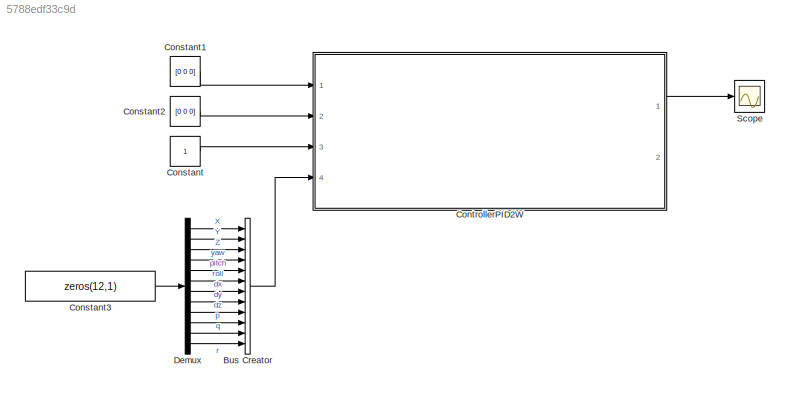
MODEL slx_5788edf33c9d
KIND model
CONFIG AbsTol = auto
CONFIG FixedStep = auto
CONFIG MaxStep = auto
CONFIG MinStep = auto
CONFIG RelTol = 1e-3
CONFIG SampleTimeConstraint = Unconstrained
CONFIG Solver = ode45
CONFIG SolverMode = Auto
CONFIG SolverName = ode45
CONFIG StartTime = 0.0
CONFIG StopTime = 10.0
BLOCK [BusCreator] Bus Creator
  DisplayOption = bar
  Inputs = 12
  Ports = [12, 1]
BLOCK [Constant] Constant
BLOCK [Constant] Constant1
  Value = [0 0 0]
BLOCK [Constant] Constant2
  Value = [0 0 0]
BLOCK [Constant] Constant3
  Value = zeros(12,1)
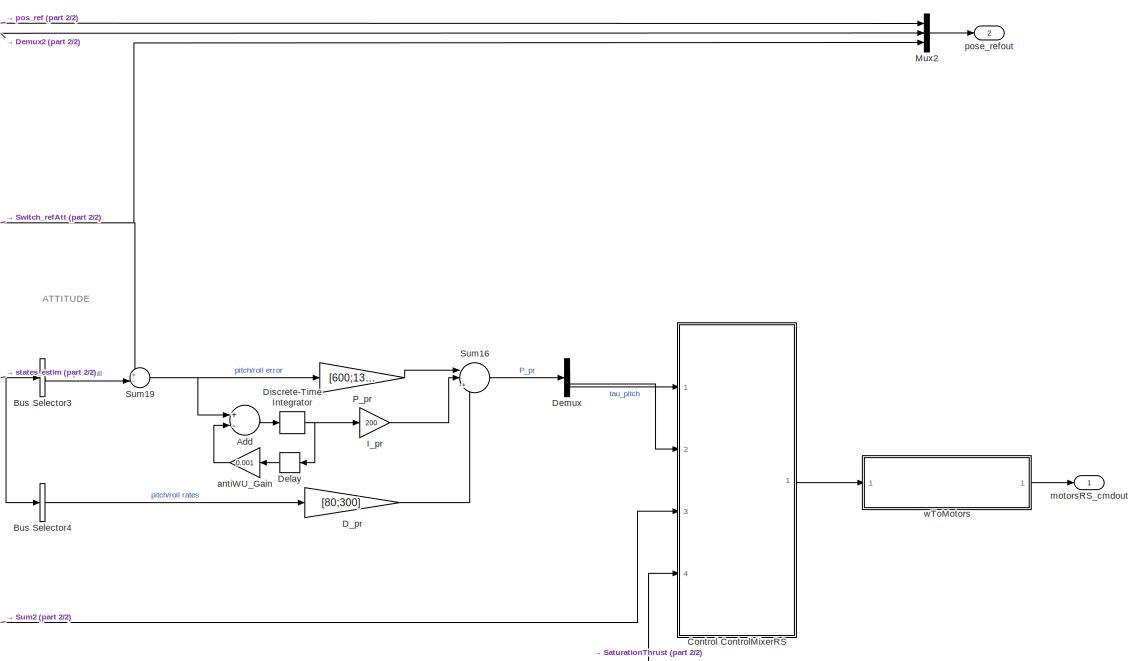
[diagram: ControllerPID2W - part 1/2, top right region]
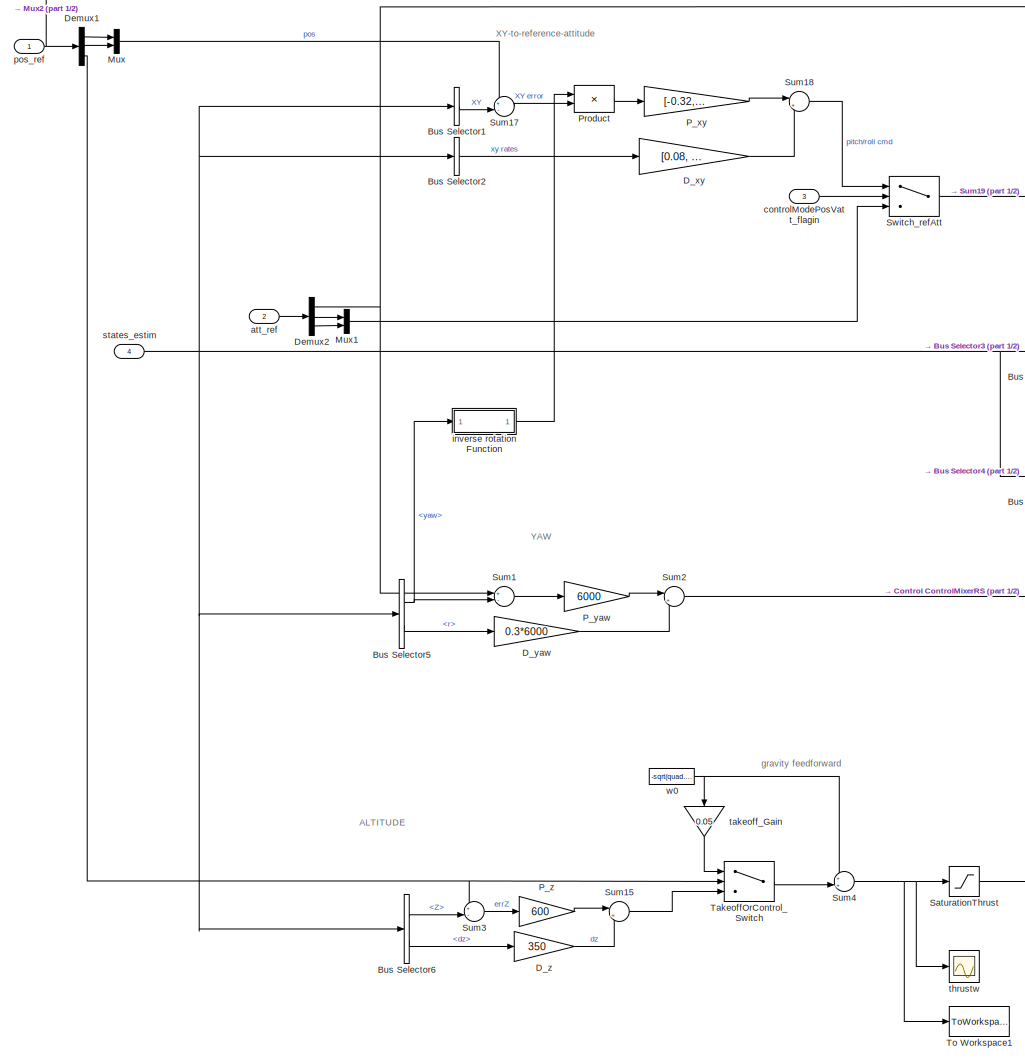
[diagram: ControllerPID2W - part 2/2, left side, full height]
BLOCK [SubSystem] ControllerPID2W
  Ports = [4, 2]
  RTWSystemCode = Reusable function
  RequestExecContextInheritance = off
  TreatAsAtomicUnit = on
BLOCK [Sum] ControllerPID2W/Add
  InputSameDT = off
  Inputs = +-
  OutDataTypeStr = Inherit: Inherit via internal rule
  Ports = [2, 1]
  SaturateOnIntegerOverflow = off
BLOCK [BusSelector] ControllerPID2W/Bus Selector1
  OutputAsBus = on
  OutputSignals = X,Y
  Ports = [1, 1]
BLOCK [BusSelector] ControllerPID2W/Bus Selector2
  OutputAsBus = on
  OutputSignals = dx,dy
  Ports = [1, 1]
BLOCK [BusSelector] ControllerPID2W/Bus Selector3
  OutputAsBus = on
  OutputSignals = pitch,roll
  Ports = [1, 1]
BLOCK [BusSelector] ControllerPID2W/Bus Selector4
  OutputAsBus = on
  OutputSignals = q,p
  Ports = [1, 1]
BLOCK [BusSelector] ControllerPID2W/Bus Selector5
  OutputSignals = yaw,r
  Ports = [1, 2]
BLOCK [BusSelector] ControllerPID2W/Bus Selector6
  OutputSignals = Z,dz
  Ports = [1, 2]
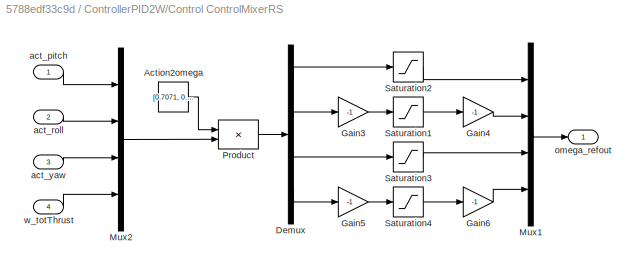
BLOCK [SubSystem] ControllerPID2W/Control ControlMixerRS
  Ports = [4, 1]
  RequestExecContextInheritance = off
BLOCK [Constant] ControllerPID2W/Control ControlMixerRS/Action2omega
  Value = [0.7071, 0.7071, -1.0000, -1.00;   -0.7071,    0.7071,   -1.0000,    1.00;   -0.7071,   -0.7071,   -1.0000,   -1.00;    0.7071,   -0.7071,   -1.0000,    1.00]
BLOCK [Demux] ControllerPID2W/Control ControlMixerRS/Demux
  DisplayOption = bar
  Ports = [1, 4]
BLOCK [Gain] ControllerPID2W/Control ControlMixerRS/Gain3
  Gain = -1
  OutDataTypeStr = Inherit: Inherit via internal rule
  ParamDataTypeStr = Inherit: Inherit via internal rule
  SaturateOnIntegerOverflow = off
BLOCK [Gain] ControllerPID2W/Control ControlMixerRS/Gain4
  Gain = -1
  OutDataTypeStr = Inherit: Inherit via internal rule
  ParamDataTypeStr = Inherit: Inherit via internal rule
  SaturateOnIntegerOverflow = off
BLOCK [Gain] ControllerPID2W/Control ControlMixerRS/Gain5
  Gain = -1
  OutDataTypeStr = Inherit: Inherit via internal rule
  ParamDataTypeStr = Inherit: Inherit via internal rule
  SaturateOnIntegerOverflow = off
BLOCK [Gain] ControllerPID2W/Control ControlMixerRS/Gain6
  Gain = -1
  OutDataTypeStr = Inherit: Inherit via internal rule
  ParamDataTypeStr = Inherit: Inherit via internal rule
  SaturateOnIntegerOverflow = off
BLOCK [Mux] ControllerPID2W/Control ControlMixerRS/Mux1
  DisplayOption = bar
  Ports = [4, 1]
BLOCK [Mux] ControllerPID2W/Control ControlMixerRS/Mux2
  DisplayOption = bar
  Ports = [4, 1]
BLOCK [Product] ControllerPID2W/Control ControlMixerRS/Product
  InputSameDT = off
  Multiplication = Matrix(*)
  OutDataTypeStr = Inherit: Inherit via internal rule
  Ports = [2, 1]
  SaturateOnIntegerOverflow = off
BLOCK [Saturate] ControllerPID2W/Control ControlMixerRS/Saturation1
  InputPortMap = u0
  LowerLimit = 500
  Ports = [1, 1]
  UpperLimit = 2618
BLOCK [Saturate] ControllerPID2W/Control ControlMixerRS/Saturation2
  InputPortMap = u0
  LowerLimit = 500
  Ports = [1, 1]
  UpperLimit = 2618
BLOCK [Saturate] ControllerPID2W/Control ControlMixerRS/Saturation3
  InputPortMap = u0
  LowerLimit = 500
  Ports = [1, 1]
  UpperLimit = 2618
BLOCK [Saturate] ControllerPID2W/Control ControlMixerRS/Saturation4
  InputPortMap = u0
  LowerLimit = 500
  Ports = [1, 1]
  UpperLimit = 2618
BLOCK [Inport] ControllerPID2W/Control ControlMixerRS/act_pitch
  IconDisplay = Port number
BLOCK [Inport] ControllerPID2W/Control ControlMixerRS/act_roll
  IconDisplay = Port number
  Port = 2
BLOCK [Inport] ControllerPID2W/Control ControlMixerRS/act_yaw
  IconDisplay = Port number
  Port = 3
BLOCK [Outport] ControllerPID2W/Control ControlMixerRS/omega_refout
  IconDisplay = Port number
BLOCK [Inport] ControllerPID2W/Control ControlMixerRS/w_totThrust
  IconDisplay = Port number
  Port = 4
BLOCK [Gain] ControllerPID2W/D_pr
  Gain = [80;300]
  OutDataTypeStr = Inherit: Inherit via internal rule
  ParamDataTypeStr = Inherit: Inherit via internal rule
  SaturateOnIntegerOverflow = off
BLOCK [Gain] ControllerPID2W/D_xy
  Gain = [0.08, -0.09]
  OutDataTypeStr = Inherit: Inherit via internal rule
  ParamDataTypeStr = Inherit: Inherit via internal rule
  SaturateOnIntegerOverflow = off
BLOCK [Gain] ControllerPID2W/D_yaw
  Gain = 0.3*6000
  OutDataTypeStr = Inherit: Inherit via internal rule
  ParamDataTypeStr = Inherit: Inherit via internal rule
  SaturateOnIntegerOverflow = off
BLOCK [Gain] ControllerPID2W/D_z
  Gain = 350
  OutDataTypeStr = Inherit: Inherit via internal rule
  ParamDataTypeStr = Inherit: Inherit via internal rule
  SaturateOnIntegerOverflow = off
BLOCK [Delay] ControllerPID2W/Delay
  DelayLength = 1
  InitialCondition = 0
  InputPortMap = u0
  Ports = [1, 1]
BLOCK [Demux] ControllerPID2W/Demux
  DisplayOption = bar
  Outputs = 2
  Ports = [1, 2]
BLOCK [Demux] ControllerPID2W/Demux1
  DisplayOption = bar
  Outputs = 3
  Ports = [1, 3]
BLOCK [Demux] ControllerPID2W/Demux2
  DisplayOption = bar
  Outputs = 3
  Ports = [1, 3]
BLOCK [DiscreteIntegrator] ControllerPID2W/Discrete-Time Integrator
  InitialConditionSetting = State (most efficient)
  LimitOutput = on
  LowerSaturationLimit = -2
  Ports = [1, 1]
  SampleTime = sampleTime_qcsim
  UpperSaturationLimit = 2
BLOCK [Gain] ControllerPID2W/I_pr
  Gain = 200
  OutDataTypeStr = Inherit: Inherit via internal rule
  ParamDataTypeStr = Inherit: Inherit via internal rule
  SaturateOnIntegerOverflow = off
BLOCK [Mux] ControllerPID2W/Mux
  DisplayOption = bar
  Inputs = 2
  Ports = [2, 1]
BLOCK [Mux] ControllerPID2W/Mux1
  DisplayOption = bar
  Inputs = 2
  Ports = [2, 1]
BLOCK [Mux] ControllerPID2W/Mux2
  DisplayOption = bar
  Inputs = 3
  Ports = [3, 1]
BLOCK [Gain] ControllerPID2W/P_pr
  Gain = [600;1300]
  OutDataTypeStr = Inherit: Inherit via internal rule
  ParamDataTypeStr = Inherit: Inherit via internal rule
  SaturateOnIntegerOverflow = off
BLOCK [Gain] ControllerPID2W/P_xy
  Gain = [-0.32,0.29]
  OutDataTypeStr = Inherit: Inherit via internal rule
  ParamDataTypeStr = Inherit: Inherit via internal rule
  SaturateOnIntegerOverflow = off
BLOCK [Gain] ControllerPID2W/P_yaw
  Gain = 6000
  OutDataTypeStr = Inherit: Inherit via internal rule
  ParamDataTypeStr = Inherit: Inherit via internal rule
  SaturateOnIntegerOverflow = off
BLOCK [Gain] ControllerPID2W/P_z
  Gain = 600
  OutDataTypeStr = Inherit: Inherit via internal rule
  ParamDataTypeStr = Inherit: Inherit via internal rule
  SaturateOnIntegerOverflow = off
BLOCK [Product] ControllerPID2W/Product
  InputSameDT = off
  Multiplication = Matrix(*)
  OutDataTypeStr = Inherit: Inherit via internal rule
  Ports = [2, 1]
  SaturateOnIntegerOverflow = off
BLOCK [Saturate] ControllerPID2W/SaturationThrust
  InputPortMap = u0
  LowerLimit = -0.92*2618
  Ports = [1, 1]
  UpperLimit = 0.92*2618
BLOCK [Sum] ControllerPID2W/Sum1
  IconShape = round
  InputSameDT = off
  Inputs = +-|
  OutDataTypeStr = Inherit: Inherit via internal rule
  Ports = [2, 1]
  SaturateOnIntegerOverflow = off
BLOCK [Sum] ControllerPID2W/Sum15
  IconShape = round
  InputSameDT = off
  Inputs = |+-
  OutDataTypeStr = Inherit: Inherit via internal rule
  Ports = [2, 1]
  SaturateOnIntegerOverflow = off
BLOCK [Sum] ControllerPID2W/Sum16
  IconShape = round
  InputSameDT = off
  Inputs = ||++-
  OutDataTypeStr = Inherit: Inherit via internal rule
  Ports = [3, 1]
  SaturateOnIntegerOverflow = off
BLOCK [Sum] ControllerPID2W/Sum17
  IconShape = round
  InputSameDT = off
  Inputs = +-|
  OutDataTypeStr = Inherit: Inherit via internal rule
  Ports = [2, 1]
  SaturateOnIntegerOverflow = off
BLOCK [Sum] ControllerPID2W/Sum18
  IconShape = round
  InputSameDT = off
  Inputs = |++
  OutDataTypeStr = Inherit: Inherit via internal rule
  Ports = [2, 1]
  SaturateOnIntegerOverflow = off
BLOCK [Sum] ControllerPID2W/Sum19
  IconShape = round
  InputSameDT = off
  Inputs = +-|
  OutDataTypeStr = Inherit: Inherit via internal rule
  Ports = [2, 1]
  SaturateOnIntegerOverflow = off
BLOCK [Sum] ControllerPID2W/Sum2
  IconShape = round
  InputSameDT = off
  Inputs = |+-
  OutDataTypeStr = Inherit: Inherit via internal rule
  Ports = [2, 1]
  SaturateOnIntegerOverflow = off
BLOCK [Sum] ControllerPID2W/Sum3
  IconShape = round
  InputSameDT = off
  Inputs = +-|
  OutDataTypeStr = Inherit: Inherit via internal rule
  Ports = [2, 1]
  SaturateOnIntegerOverflow = off
BLOCK [Sum] ControllerPID2W/Sum4
  IconShape = round
  InputSameDT = off
  Inputs = ++|
  OutDataTypeStr = Inherit: Inherit via internal rule
  Ports = [2, 1]
  SaturateOnIntegerOverflow = off
BLOCK [Switch] ControllerPID2W/Switch_refAtt
  Criteria = u2 > Threshold
  InputSameDT = off
  SaturateOnIntegerOverflow = off
BLOCK [Switch] ControllerPID2W/TakeoffOrControl_Switch
  Criteria = u2 > Threshold
  InputSameDT = off
  SaturateOnIntegerOverflow = off
BLOCK [ToWorkspace] ControllerPID2W/To Workspace1
  MaxDataPoints = inf
  Ports = [1]
  SampleTime = -1
  VariableName = Tw
BLOCK [Gain] ControllerPID2W/antiWU_Gain
  Gain = 0.001
  OutDataTypeStr = Inherit: Inherit via internal rule
  ParamDataTypeStr = Inherit: Inherit via internal rule
  SaturateOnIntegerOverflow = off
BLOCK [Inport] ControllerPID2W/att_ref
  IconDisplay = Port number
  Port = 2
BLOCK [Inport] ControllerPID2W/controlModePosVatt_flagin
  IconDisplay = Port number
  Port = 3
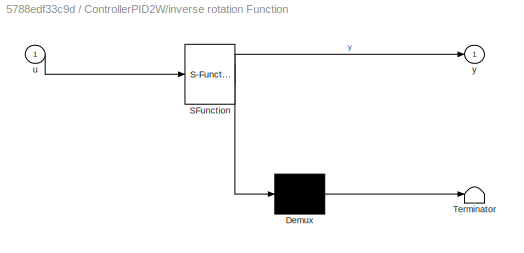
BLOCK [SubSystem] ControllerPID2W/inverse rotation Function
  ErrorFcn = Stateflow.Translate.translate
  PermitHierarchicalResolution = ExplicitOnly
  Ports = [1, 1]
  RequestExecContextInheritance = off
  SFBlockType = MATLAB Function
  TreatAsAtomicUnit = on
BLOCK [Demux] ControllerPID2W/inverse rotation Function/ Demux 
  Outputs = 1
  Ports = [1, 1]
BLOCK [S-Function] ControllerPID2W/inverse rotation Function/ SFunction 
  EnableBusSupport = on
  FunctionName = sf_sfun
  PortCounts = [1 2]
  Ports = [1, 2]
  Tag = Stateflow S-Function linearizeController 2
BLOCK [Terminator] ControllerPID2W/inverse rotation Function/ Terminator 
BLOCK [Inport] ControllerPID2W/inverse rotation Function/u
  IconDisplay = Port number
BLOCK [Outport] ControllerPID2W/inverse rotation Function/y
  IconDisplay = Port number
BLOCK [Outport] ControllerPID2W/motorsRS_cmdout
  IconDisplay = Port number
BLOCK [Inport] ControllerPID2W/pos_ref
  IconDisplay = Port number
BLOCK [Outport] ControllerPID2W/pose_refout
  IconDisplay = Port number
  Port = 2
BLOCK [Inport] ControllerPID2W/states_estim
  IconDisplay = Port number
  Port = 4
BLOCK [Gain] ControllerPID2W/takeoff_Gain
  Gain = 0.05
  OutDataTypeStr = Inherit: Inherit via internal rule
  ParamDataTypeStr = Inherit: Inherit via internal rule
  SaturateOnIntegerOverflow = off
BLOCK [Scope] ControllerPID2W/thrustw
  DataFormat = StructureWithTime
  Floating = off
  NumInputPorts = 1
  Ports = [1]
  SampleTime = 0
  SaveName = ScopeData15
  YMax = 0.045
  YMin = -0.04
BLOCK [Constant] ControllerPID2W/w0
  SampleTime = sampleTime_qcsim
  Value = -sqrt(quad.M*quad.g/4/quad.b)
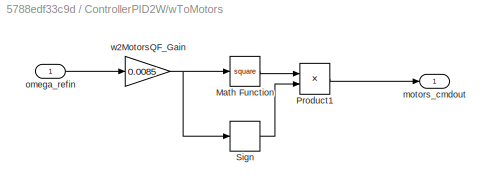
BLOCK [SubSystem] ControllerPID2W/wToMotors
  Ports = [1, 1]
  RequestExecContextInheritance = off
BLOCK [Math] ControllerPID2W/wToMotors/Math Function
  Operator = square
  Ports = [1, 1]
BLOCK [Product] ControllerPID2W/wToMotors/Product1
  InputSameDT = off
  OutDataTypeStr = Inherit: Inherit via internal rule
  Ports = [2, 1]
  RndMeth = Floor
  SaturateOnIntegerOverflow = off
BLOCK [Signum] ControllerPID2W/wToMotors/Sign
BLOCK [Outport] ControllerPID2W/wToMotors/motors_cmdout
  IconDisplay = Port number
BLOCK [Inport] ControllerPID2W/wToMotors/omega_refin
  IconDisplay = Port number
BLOCK [Gain] ControllerPID2W/wToMotors/w2MotorsQF_Gain
  Gain = 0.0085
  OutDataTypeStr = Inherit: Inherit via internal rule
  ParamDataTypeStr = Inherit: Inherit via internal rule
  SaturateOnIntegerOverflow = off
BLOCK [Demux] Demux
  DisplayOption = bar
  Outputs = 12
  Ports = [1, 12]
BLOCK [Scope] Scope
  Floating = off
  NumInputPorts = 1
  Ports = [1]
  SaveName = ScopeData2
ANNOTATION ControllerPID2W: ALTITUDE
ANNOTATION ControllerPID2W: ATTITUDE
ANNOTATION ControllerPID2W: XY-to-reference-attitude
ANNOTATION ControllerPID2W: YAW
ANNOTATION ControllerPID2W: gravity feedforward
LINE Bus Creator:1 -> ControllerPID2W:4
LINE Constant1:1 -> ControllerPID2W:1
LINE Constant2:1 -> ControllerPID2W:2
LINE Constant3:1 -> Demux:1
LINE Constant:1 -> ControllerPID2W:3
LINE ControllerPID2W/Add:1 -> ControllerPID2W/Discrete-Time Integrator:1
LINE ControllerPID2W/Bus Selector1:1 -> ControllerPID2W/Sum17:2
LINE ControllerPID2W/Bus Selector2:1 -> ControllerPID2W/D_xy:1
LINE ControllerPID2W/Bus Selector3:1 -> ControllerPID2W/Sum19:2
LINE ControllerPID2W/Bus Selector4:1 -> ControllerPID2W/D_pr:1
NET ControllerPID2W/Bus Selector5:1 -> ControllerPID2W/Sum1:2, ControllerPID2W/inverse rotation Function:1
LINE ControllerPID2W/Bus Selector5:2 -> ControllerPID2W/D_yaw:1
LINE ControllerPID2W/Bus Selector6:1 -> ControllerPID2W/Sum3:2
LINE ControllerPID2W/Bus Selector6:2 -> ControllerPID2W/D_z:1
LINE ControllerPID2W/Control ControlMixerRS/Action2omega:1 -> ControllerPID2W/Control ControlMixerRS/Product:1
LINE ControllerPID2W/Control ControlMixerRS/Demux:1 -> ControllerPID2W/Control ControlMixerRS/Saturation2:1
LINE ControllerPID2W/Control ControlMixerRS/Demux:2 -> ControllerPID2W/Control ControlMixerRS/Gain3:1
LINE ControllerPID2W/Control ControlMixerRS/Demux:3 -> ControllerPID2W/Control ControlMixerRS/Saturation3:1
LINE ControllerPID2W/Control ControlMixerRS/Demux:4 -> ControllerPID2W/Control ControlMixerRS/Gain5:1
LINE ControllerPID2W/Control ControlMixerRS/Gain3:1 -> ControllerPID2W/Control ControlMixerRS/Saturation1:1
LINE ControllerPID2W/Control ControlMixerRS/Gain4:1 -> ControllerPID2W/Control ControlMixerRS/Mux1:2
LINE ControllerPID2W/Control ControlMixerRS/Gain5:1 -> ControllerPID2W/Control ControlMixerRS/Saturation4:1
LINE ControllerPID2W/Control ControlMixerRS/Gain6:1 -> ControllerPID2W/Control ControlMixerRS/Mux1:4
LINE ControllerPID2W/Control ControlMixerRS/Mux1:1 -> ControllerPID2W/Control ControlMixerRS/omega_refout:1
LINE ControllerPID2W/Control ControlMixerRS/Mux2:1 -> ControllerPID2W/Control ControlMixerRS/Product:2
LINE ControllerPID2W/Control ControlMixerRS/Product:1 -> ControllerPID2W/Control ControlMixerRS/Demux:1
LINE ControllerPID2W/Control ControlMixerRS/Saturation1:1 -> ControllerPID2W/Control ControlMixerRS/Gain4:1
LINE ControllerPID2W/Control ControlMixerRS/Saturation2:1 -> ControllerPID2W/Control ControlMixerRS/Mux1:1
LINE ControllerPID2W/Control ControlMixerRS/Saturation3:1 -> ControllerPID2W/Control ControlMixerRS/Mux1:3
LINE ControllerPID2W/Control ControlMixerRS/Saturation4:1 -> ControllerPID2W/Control ControlMixerRS/Gain6:1
LINE ControllerPID2W/Control ControlMixerRS/act_pitch:1 -> ControllerPID2W/Control ControlMixerRS/Mux2:1
LINE ControllerPID2W/Control ControlMixerRS/act_roll:1 -> ControllerPID2W/Control ControlMixerRS/Mux2:2
LINE ControllerPID2W/Control ControlMixerRS/act_yaw:1 -> ControllerPID2W/Control ControlMixerRS/Mux2:3
LINE ControllerPID2W/Control ControlMixerRS/w_totThrust:1 -> ControllerPID2W/Control ControlMixerRS/Mux2:4
LINE ControllerPID2W/Control ControlMixerRS:1 -> ControllerPID2W/wToMotors:1
LINE ControllerPID2W/D_pr:1 -> ControllerPID2W/Sum16:3
LINE ControllerPID2W/D_xy:1 -> ControllerPID2W/Sum18:2
LINE ControllerPID2W/D_yaw:1 -> ControllerPID2W/Sum2:2
LINE ControllerPID2W/D_z:1 -> ControllerPID2W/Sum15:2
LINE ControllerPID2W/Delay:1 -> ControllerPID2W/antiWU_Gain:1
LINE ControllerPID2W/Demux1:1 -> ControllerPID2W/Mux:1
LINE ControllerPID2W/Demux1:2 -> ControllerPID2W/Mux:2
NET ControllerPID2W/Demux1:3 -> ControllerPID2W/Sum3:1, ControllerPID2W/TakeoffOrControl_Switch:2
NET ControllerPID2W/Demux2:1 -> ControllerPID2W/Mux2:2, ControllerPID2W/Sum1:1
LINE ControllerPID2W/Demux2:2 -> ControllerPID2W/Mux1:1
LINE ControllerPID2W/Demux2:3 -> ControllerPID2W/Mux1:2
LINE ControllerPID2W/Demux:1 -> ControllerPID2W/Control ControlMixerRS:1
LINE ControllerPID2W/Demux:2 -> ControllerPID2W/Control ControlMixerRS:2
NET ControllerPID2W/Discrete-Time Integrator:1 -> ControllerPID2W/Delay:1, ControllerPID2W/I_pr:1
LINE ControllerPID2W/I_pr:1 -> ControllerPID2W/Sum16:2
LINE ControllerPID2W/Mux1:1 -> ControllerPID2W/Switch_refAtt:3
LINE ControllerPID2W/Mux2:1 -> ControllerPID2W/pose_refout:1
LINE ControllerPID2W/Mux:1 -> ControllerPID2W/Sum17:1
LINE ControllerPID2W/P_pr:1 -> ControllerPID2W/Sum16:1
LINE ControllerPID2W/P_xy:1 -> ControllerPID2W/Sum18:1
LINE ControllerPID2W/P_yaw:1 -> ControllerPID2W/Sum2:1
LINE ControllerPID2W/P_z:1 -> ControllerPID2W/Sum15:1
LINE ControllerPID2W/Product:1 -> ControllerPID2W/P_xy:1
LINE ControllerPID2W/SaturationThrust:1 -> ControllerPID2W/Control ControlMixerRS:4
LINE ControllerPID2W/Sum15:1 -> ControllerPID2W/TakeoffOrControl_Switch:3
LINE ControllerPID2W/Sum16:1 -> ControllerPID2W/Demux:1
LINE ControllerPID2W/Sum17:1 -> ControllerPID2W/Product:2
LINE ControllerPID2W/Sum18:1 -> ControllerPID2W/Switch_refAtt:1
NET ControllerPID2W/Sum19:1 -> ControllerPID2W/Add:1, ControllerPID2W/P_pr:1
LINE ControllerPID2W/Sum1:1 -> ControllerPID2W/P_yaw:1
LINE ControllerPID2W/Sum2:1 -> ControllerPID2W/Control ControlMixerRS:3
LINE ControllerPID2W/Sum3:1 -> ControllerPID2W/P_z:1
NET ControllerPID2W/Sum4:1 -> ControllerPID2W/SaturationThrust:1, ControllerPID2W/To Workspace1:1, ControllerPID2W/thrustw:1
NET ControllerPID2W/Switch_refAtt:1 -> ControllerPID2W/Mux2:3, ControllerPID2W/Sum19:1
LINE ControllerPID2W/TakeoffOrControl_Switch:1 -> ControllerPID2W/Sum4:2
LINE ControllerPID2W/antiWU_Gain:1 -> ControllerPID2W/Add:2
LINE ControllerPID2W/att_ref:1 -> ControllerPID2W/Demux2:1
LINE ControllerPID2W/controlModePosVatt_flagin:1 -> ControllerPID2W/Switch_refAtt:2
LINE ControllerPID2W/inverse rotation Function:1 -> ControllerPID2W/Product:1
NET ControllerPID2W/pos_ref:1 -> ControllerPID2W/Demux1:1, ControllerPID2W/Mux2:1
NET ControllerPID2W/states_estim:1 -> ControllerPID2W/Bus Selector1:1, ControllerPID2W/Bus Selector2:1, ControllerPID2W/Bus Selector3:1, ControllerPID2W/Bus Selector4:1, ControllerPID2W/Bus Selector5:1, ControllerPID2W/Bus Selector6:1
LINE ControllerPID2W/takeoff_Gain:1 -> ControllerPID2W/TakeoffOrControl_Switch:1
NET ControllerPID2W/w0:1 -> ControllerPID2W/Sum4:1, ControllerPID2W/takeoff_Gain:1
LINE ControllerPID2W/wToMotors/Math Function:1 -> ControllerPID2W/wToMotors/Product1:1
LINE ControllerPID2W/wToMotors/Product1:1 -> ControllerPID2W/wToMotors/motors_cmdout:1
LINE ControllerPID2W/wToMotors/Sign:1 -> ControllerPID2W/wToMotors/Product1:2
LINE ControllerPID2W/wToMotors/omega_refin:1 -> ControllerPID2W/wToMotors/w2MotorsQF_Gain:1
NET ControllerPID2W/wToMotors/w2MotorsQF_Gain:1 -> ControllerPID2W/wToMotors/Math Function:1, ControllerPID2W/wToMotors/Sign:1
LINE ControllerPID2W/wToMotors:1 -> ControllerPID2W/motorsRS_cmdout:1
LINE ControllerPID2W:1 -> Scope:1
LINE Demux:1 -> Bus Creator:1
LINE Demux:10 -> Bus Creator:10
LINE Demux:11 -> Bus Creator:11
LINE Demux:12 -> Bus Creator:12
LINE Demux:2 -> Bus Creator:2
LINE Demux:3 -> Bus Creator:3
LINE Demux:4 -> Bus Creator:4
LINE Demux:5 -> Bus Creator:5
LINE Demux:6 -> Bus Creator:6
LINE Demux:7 -> Bus Creator:7
LINE Demux:8 -> Bus Creator:8
LINE Demux:9 -> Bus Creator:9
note: NET lines group one-source signal fan-out (src -> all destinations, sorted); 1:1 wires keep LINE
CHART ControllerPID2W/inverse rotation Function states=1 transitions=1
  STATE_LABEL 'eML_blk_kernel()'
  STATE_LABEL 'SCRIPT:\nfunction y = fcn(u)\n%inverse yaw-rotation\ny = ([cos(u) sin(u); -sin(u) cos(u)]);'
